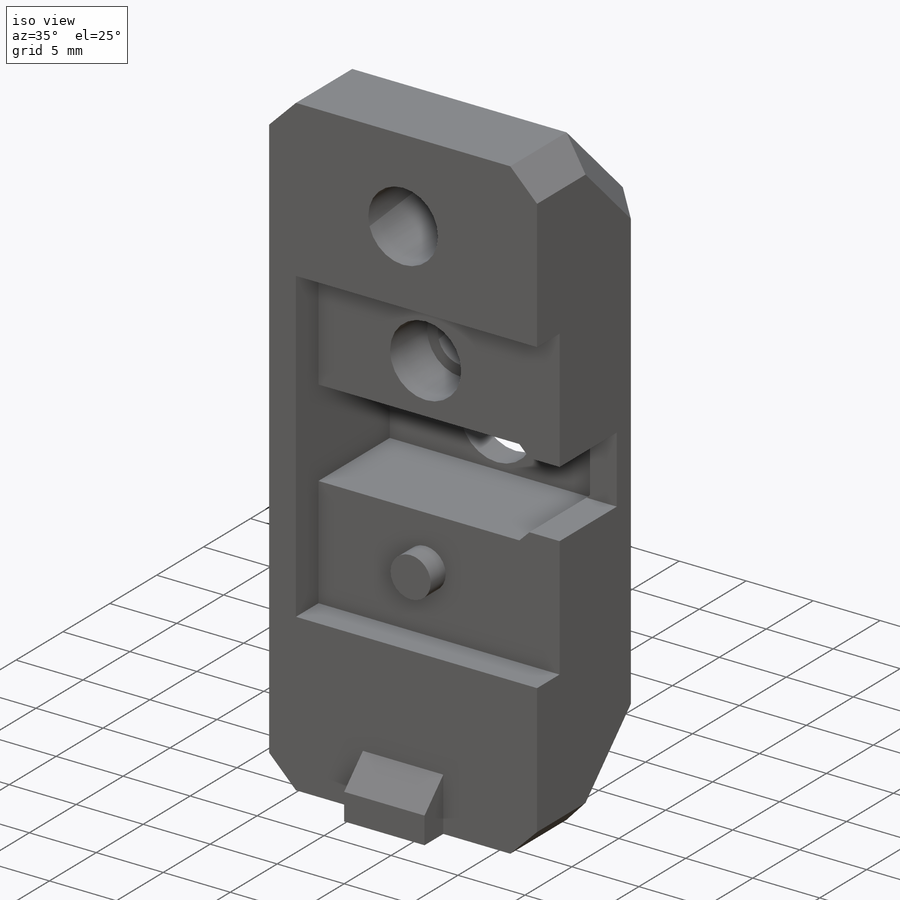
[diagram: iso view]
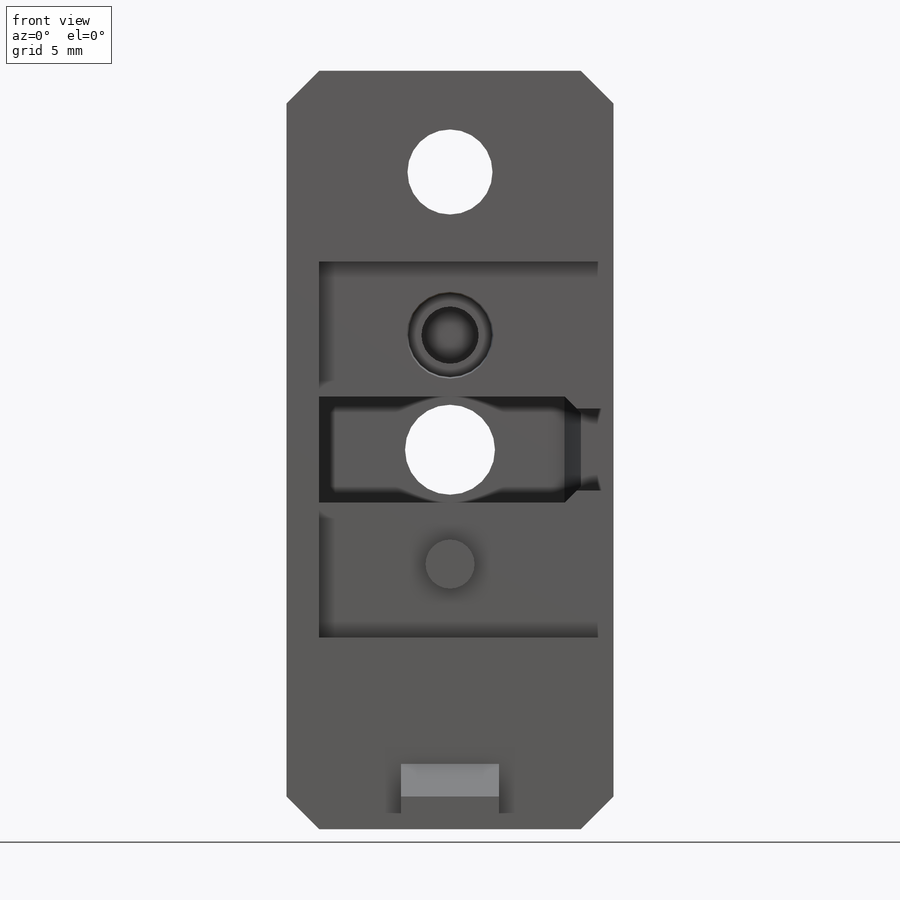
[diagram: front view]
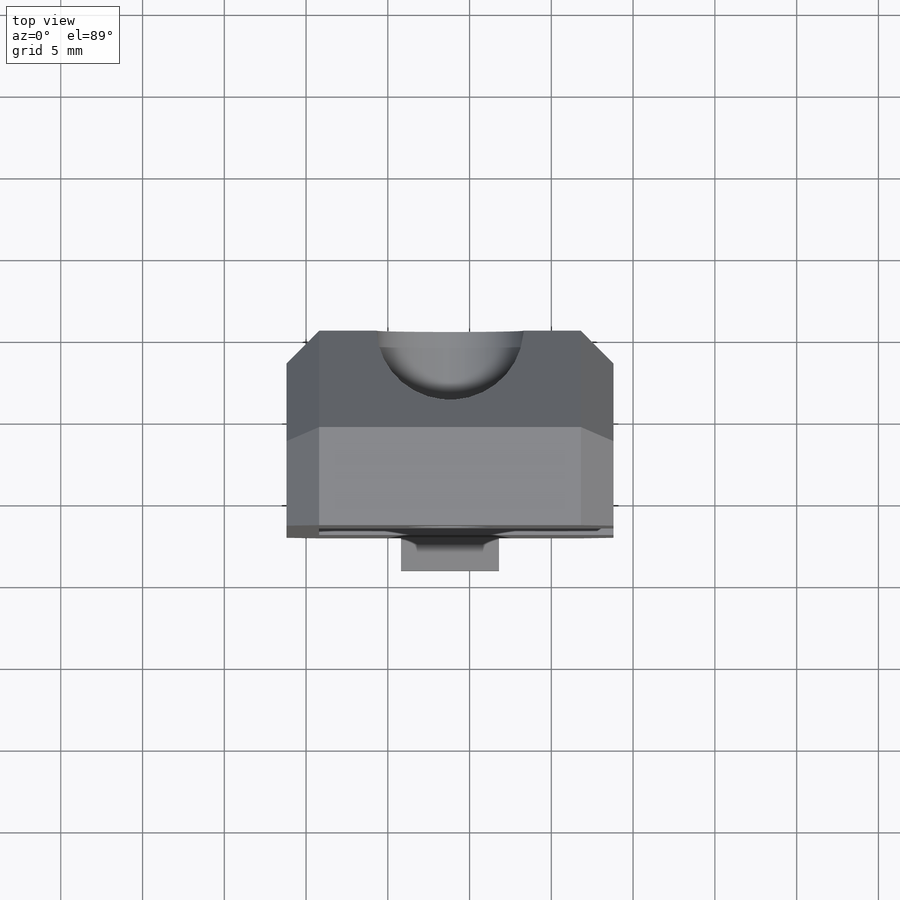
[diagram: top view]
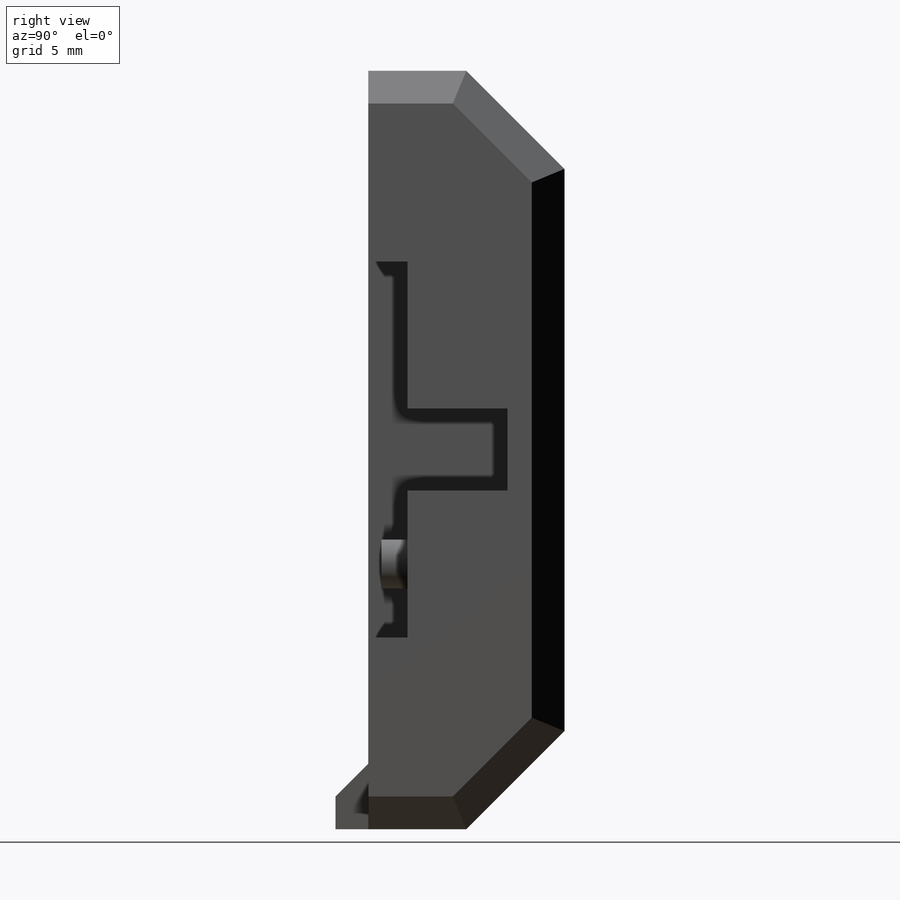
[diagram: right view]
SOLIDWORKS PART (.sldprt)
format: sldprt  version: not decoded by parser v0  size: 642,560 bytes
history: native  units: mm
features: sketch x11, extrude x9, chamfer x5, cut_extrude x2, material x1 (+16 scaffold rows collapsed)
feature tree (44):
  scaffold x16  (default folders/planes/origin — collapsed)
  material  "Material <not specified>"
  sketch  "Sketch1"  dims[c1.D1=5.5mm c1.D2=3.5mm c1.D3=6.75mm c1.D4=6.75mm c2.D3=7.0mm]
  extrude  "Boss-Extrude2"  Depth=2mm
  sketch  "Sketch2"
  extrude  "Boss-Extrude3"  Depth=10mm
  sketch  "Sketch3"  dims[D1=6.5mm]
  sketch  "Sketch4"  dims[D1=3.5mm]
  extrude  "Boss-Extrude5"  Depth=2mm
  sketch  "Sketch5"  dims[D1=9.0mm D2=9.0mm]
  cut_extrude  "Cut-Extrude1"  Depth=5mm
  extrude  "Boss-Extrude9"  Depth=7.6mm
  sketch  "Sketch8"  dims[D1=5.1mm]
  cut_extrude  "Cut-Extrude3"  Depth=3.8mm
  chamfer  "Chamfer5"  Distance=0.105mm
  chamfer  "Chamfer6"  Distance=6mm Angle=45deg
  chamfer  "Chamfer7"  Distance=2mm Angle=45deg
  sketch  "Sketch9"  dims[D1=2.0mm]
  extrude  "Boss-Extrude10"  Depth=1.5mm
  sketch  "Sketch10"  dims[c1.D1=1.5mm c1.D2=7.0mm c2.D1=0.75mm c2.D2=1.45mm]
  extrude  "Boss-Extrude11"  [1 undecoded]
  chamfer  "Chamfer8"  Distance=1mm Angle=45deg
  sketch  "Sketch13"
  extrude  "Boss-Extrude14"  [1 undecoded]
  sketch  "Sketch12"  dims[D1=3.0mm D2=7.0mm]
  extrude  "Boss-Extrude15"  Depth=1.6mm
  sketch  "Sketch14"  dims[D1=3.0mm D2=3.0mm D3=4.0mm]
  extrude  "Boss-Extrude16"  Depth=2mm
  chamfer  "Chamfer9"  Distance=2mm Angle=45deg
decode coverage: 23 of 27 modeling features carry decoded parameters
note: 2 parameter values undecoded
note: suppression state not decoded; provenance and decode notes live in map.json
